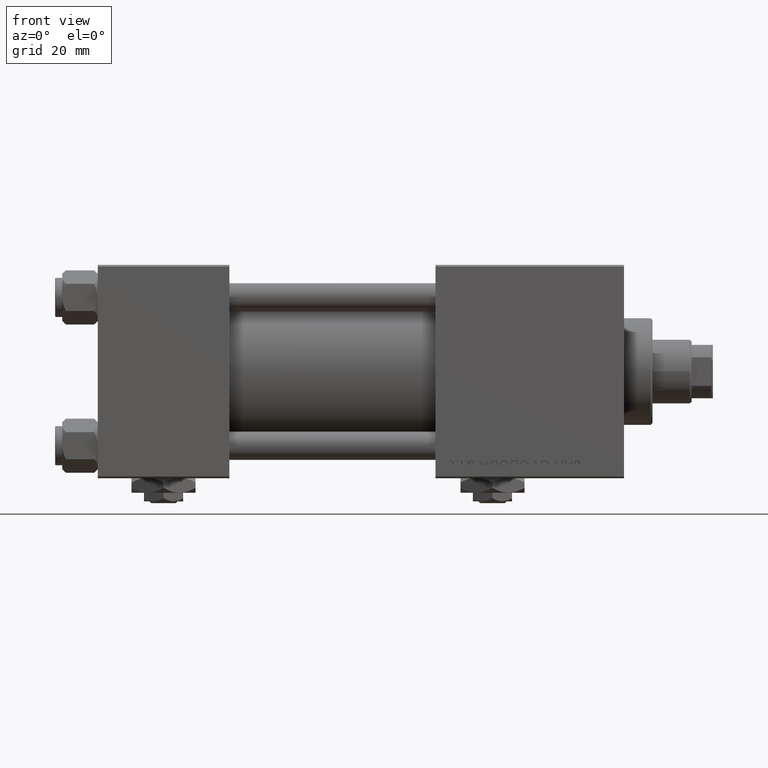
[diagram: clean part render]
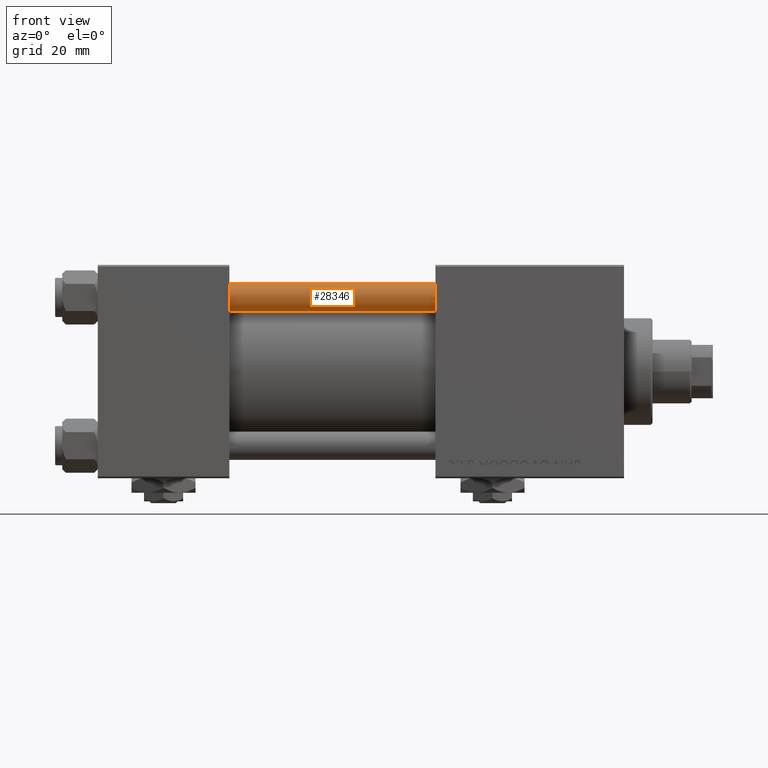
[diagram: same view with one face highlighted and labeled with its STEP entity id]
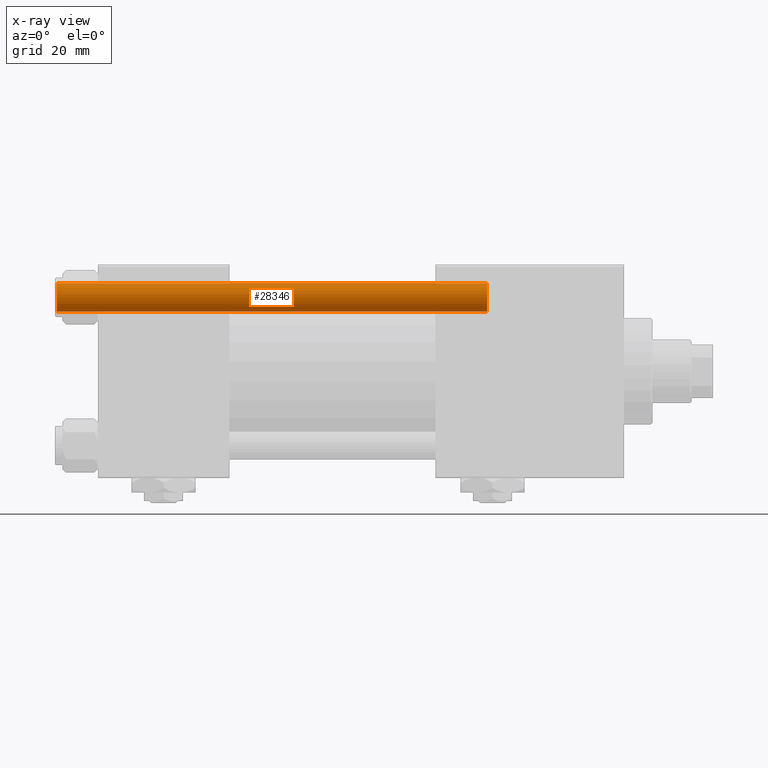
[diagram: x-ray of the same camera — body ghosted, the highlighted face saturated]
A machine part, front view. The second image highlights one B-rep face of the part: STEP entity #28346.
The next image is the same camera in x-ray: the body ghosted, the highlighted face saturated — about 0% of this face is hidden behind the body in this view.
In plain terms, the highlighted cylindrical surface (edge-blend (fillet) strip) has radius 4 mm, axis along (1, 0, -0).
Its self-contained STEP definition (entity closure, byte-faithful):
#349 = VERTEX_POINT ( 'NONE', #46321 ) ;
#1088 = AXIS2_PLACEMENT_3D ( 'NONE', #36228, #52407, #28283 ) ;
#2184 = ORIENTED_EDGE ( 'NONE', *, *, #12944, .T. ) ;
#2538 = AXIS2_PLACEMENT_3D ( 'NONE', #45980, #9680, #25848 ) ;
#3712 = CYLINDRICAL_SURFACE ( 'NONE', #12600, 4.000000000000000000 ) ;
#4156 = VERTEX_POINT ( 'NONE', #38109 ) ;
#5441 = CARTESIAN_POINT ( 'NONE',  ( -4.000000000000000000, 0.000000000000000000, 0.5000000000000559552 ) ) ;
#7799 = VECTOR ( 'NONE', #31612, 1000.000000000000000 ) ;
#8797 = ORIENTED_EDGE ( 'NONE', *, *, #47274, .T. ) ;
#9680 = DIRECTION ( 'NONE',  ( -0.000000000000000000, -0.000000000000000000, 1.000000000000000000 ) ) ;
#12600 = AXIS2_PLACEMENT_3D ( 'NONE', #32608, #40813, #36578 ) ;
#12944 = EDGE_CURVE ( 'NONE', #349, #20644, #48246, .T. ) ;
#17292 = LINE ( 'NONE', #41668, #37669 ) ;
#17717 = ORIENTED_EDGE ( 'NONE', *, *, #41737, .T. ) ;
#18905 = ORIENTED_EDGE ( 'NONE', *, *, #20851, .F. ) ;
#20644 = VERTEX_POINT ( 'NONE', #5441 ) ;
#20851 = EDGE_CURVE ( 'NONE', #4156, #20644, #31877, .T. ) ;
#25494 = CARTESIAN_POINT ( 'NONE',  ( 4.000000000000000000, 4.898587196589411843E-16, 121.5000000000000426 ) ) ;
#25848 = DIRECTION ( 'NONE',  ( 1.000000000000000000, 0.000000000000000000, 0.000000000000000000 ) ) ;
#28283 = DIRECTION ( 'NONE',  ( 1.000000000000000000, 0.000000000000000000, 0.000000000000000000 ) ) ;
#28346 = ADVANCED_FACE ( 'NONE', ( #40027 ), #3712, .T. ) ;
#31612 = DIRECTION ( 'NONE',  ( -0.000000000000000000, -0.000000000000000000, -1.000000000000000000 ) ) ;
#31877 = LINE ( 'NONE', #36648, #7799 ) ;
#32608 = CARTESIAN_POINT ( 'NONE',  ( 0.000000000000000000, 0.000000000000000000, 122.0000000000000000 ) ) ;
#34724 = VERTEX_POINT ( 'NONE', #25494 ) ;
#36228 = CARTESIAN_POINT ( 'NONE',  ( 0.000000000000000000, 0.000000000000000000, 121.5000000000000426 ) ) ;
#36402 = EDGE_LOOP ( 'NONE', ( #17717, #8797, #2184, #18905 ) ) ;
#36578 = DIRECTION ( 'NONE',  ( -1.000000000000000000, 0.000000000000000000, 0.000000000000000000 ) ) ;
#36648 = CARTESIAN_POINT ( 'NONE',  ( -4.000000000000000000, 0.000000000000000000, 122.0000000000000000 ) ) ;
#37669 = VECTOR ( 'NONE', #37687, 1000.000000000000000 ) ;
#37687 = DIRECTION ( 'NONE',  ( -0.000000000000000000, -0.000000000000000000, -1.000000000000000000 ) ) ;
#38109 = CARTESIAN_POINT ( 'NONE',  ( -4.000000000000000000, 0.000000000000000000, 121.5000000000000426 ) ) ;
#40027 = FACE_OUTER_BOUND ( 'NONE', #36402, .T. ) ;
#40813 = DIRECTION ( 'NONE',  ( -0.000000000000000000, -0.000000000000000000, -1.000000000000000000 ) ) ;
#41668 = CARTESIAN_POINT ( 'NONE',  ( 4.000000000000000000, 4.898587196589411843E-16, 122.0000000000000000 ) ) ;
#41737 = EDGE_CURVE ( 'NONE', #4156, #34724, #47608, .T. ) ;
#45980 = CARTESIAN_POINT ( 'NONE',  ( 0.000000000000000000, 0.000000000000000000, 0.5000000000000559552 ) ) ;
#46321 = CARTESIAN_POINT ( 'NONE',  ( 4.000000000000000000, 4.898587196589411843E-16, 0.5000000000000559552 ) ) ;
#47274 = EDGE_CURVE ( 'NONE', #34724, #349, #17292, .T. ) ;
#47608 = CIRCLE ( 'NONE', #1088, 4.000000000000000000 ) ;
#48246 = CIRCLE ( 'NONE', #2538, 4.000000000000000000 ) ;
#52407 = DIRECTION ( 'NONE',  ( 0.000000000000000000, 0.000000000000000000, -1.000000000000000000 ) ) ;